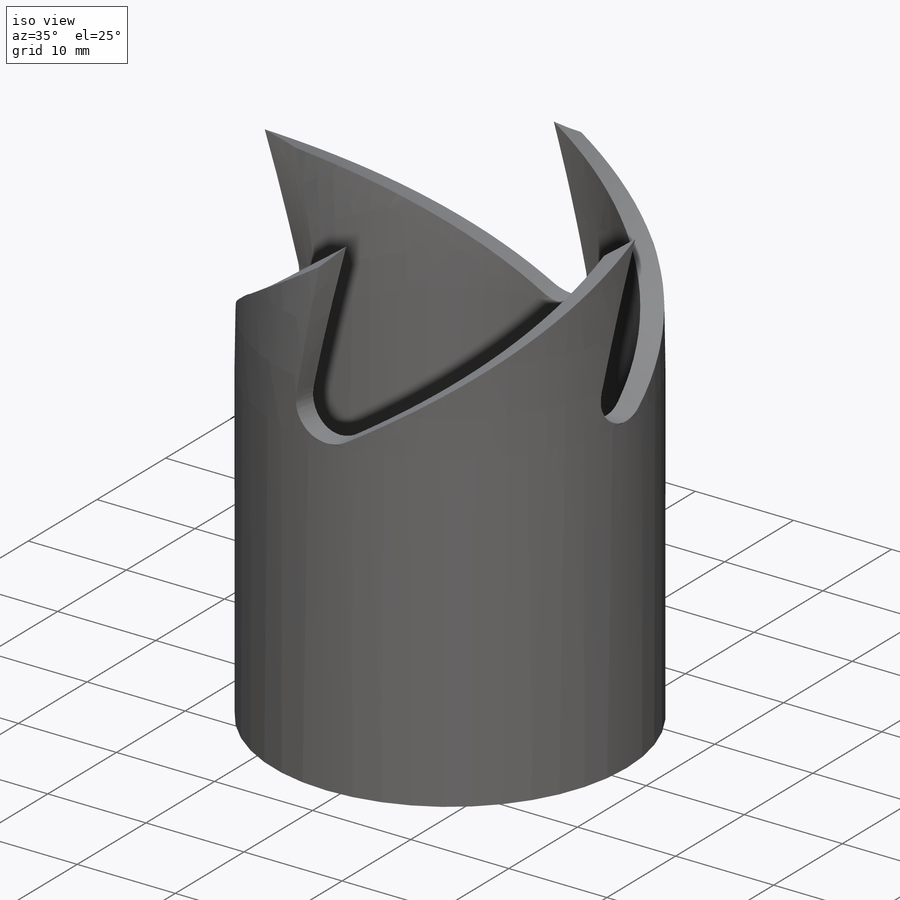
[diagram: iso view]
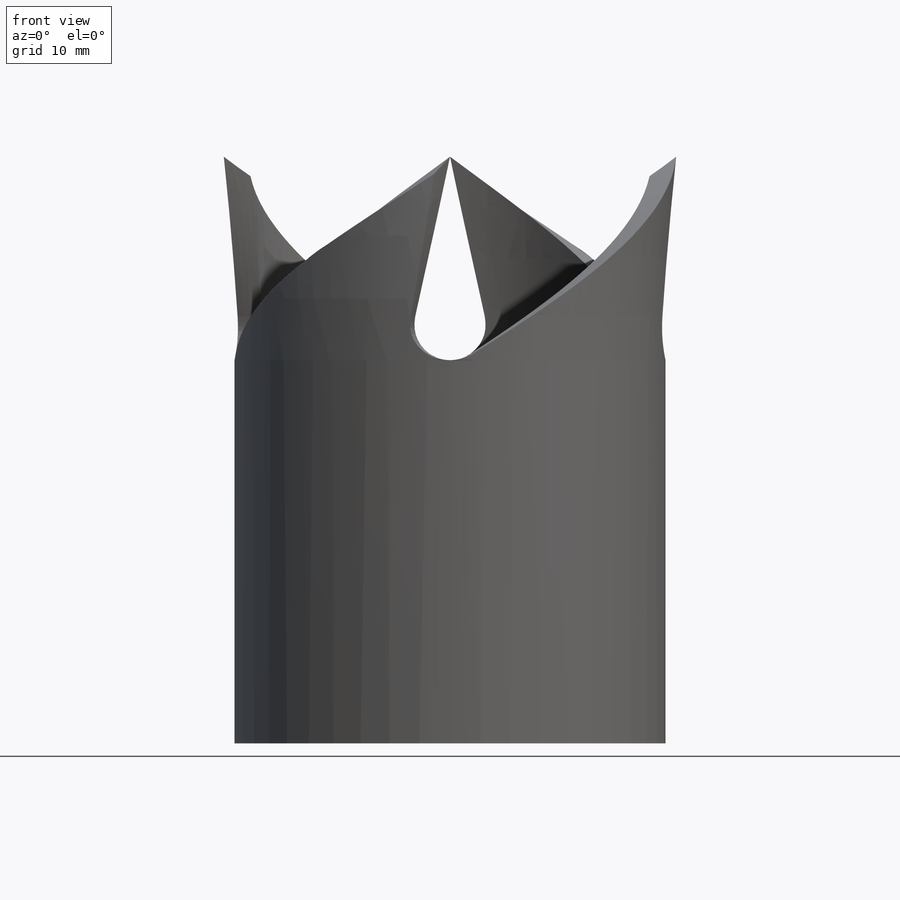
[diagram: front view]
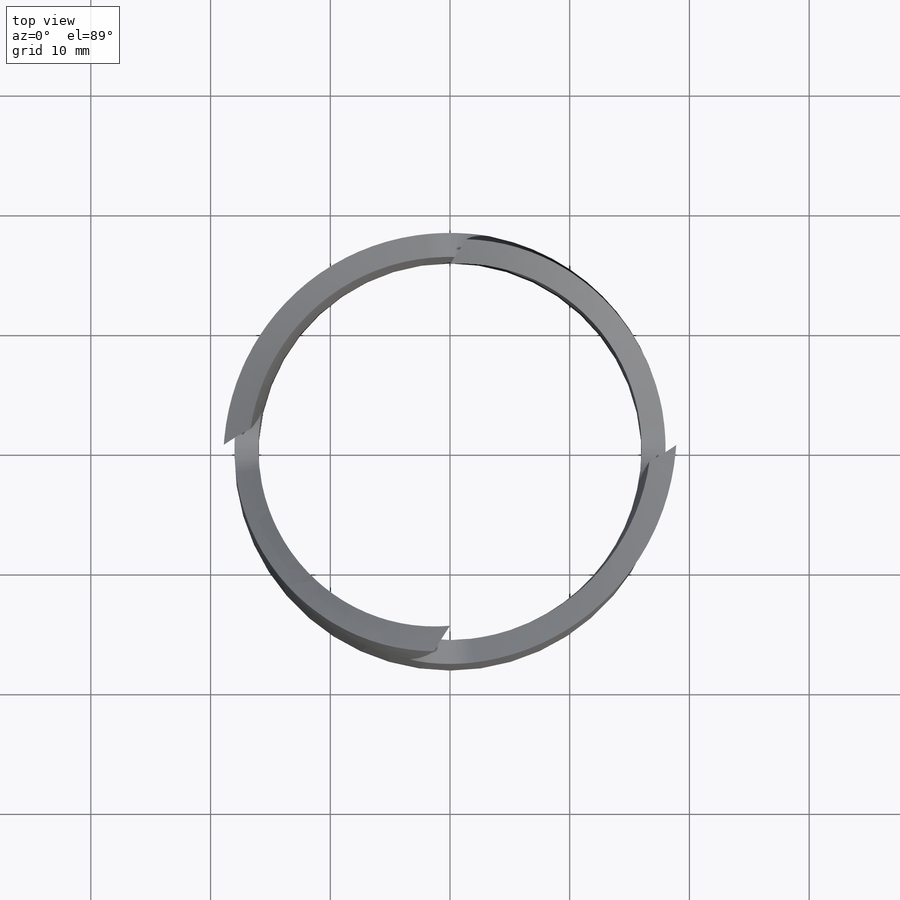
[diagram: top view]
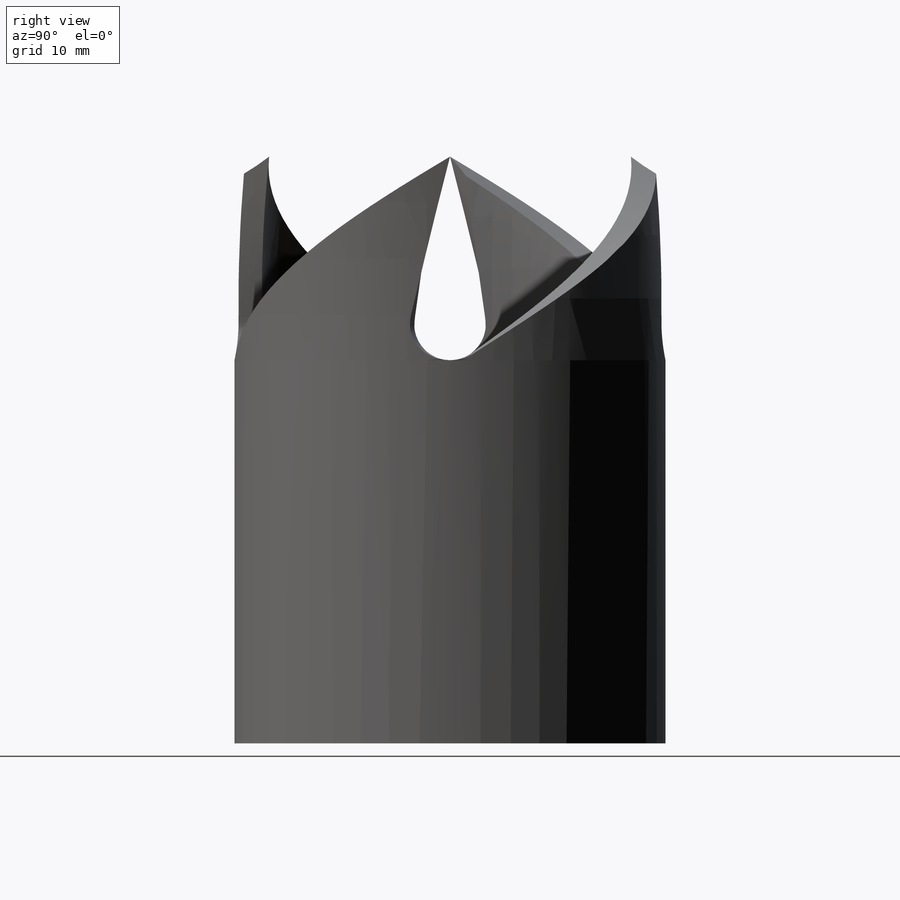
[diagram: right view]
SOLIDWORKS PART (.sldprt)
format: sldprt  version: not decoded by parser v0  size: 801,280 bytes
history: native  units: mm
features: sketch x16, plane x12, pattern_circular x2, boolean_combine x2, material x1, surface_op x1, extrude x1, cut_extrude x1 + 2 further entries (+8 scaffold rows collapsed)
feature tree (46):
  scaffold x8  (default folders/planes/origin — collapsed)
  material  "Material <nicht festgelegt>"
  plane  "Ebene vorne"
  plane  "Ebene oben"
  plane  "Ebene rechts"
  sketch  "Längen"  dims[D1=18.0mm D2=50.0mm]
  sketch  "Profil"  dims[c1.D1=36.0mm c1.D2=~61.499002mm c1.D3=32.0mm c2.D1=32.0mm c2.D3=36.0mm c2.Aussen=36.0mm c3.D3=32.0mm c3.Wand_Stärke=2.0mm c3.D4=~25.132741mm]
  plane  "Ebene1"
  sketch  "Z_Kontur"  dims[c1.D2=~3.155596mm c1.D3=2.0mm c1.D4=2.0mm c2.D3=2.0mm c2.D4=2.0mm c2.D5=2.0mm c3.D3=4.0mm c3.D2=2.0mm c4.D3=3.0mm c4.D1=25.0mm c5.D1=60.0deg c5.D2=~18.044955mm c6.D1=1.0mm c6.D2=3.0mm c6.D4=~0.108689mm c7.D2=~20.579115mm c8.D2=8.0deg c8.D4=3.0mm c9.D2=~20.582406mm c10.D2=8.0deg c10.D3=~20.784681mm c10.D1=1.0mm c11.D2=~19.17571mm c12.D2=8.0deg c12.D3=4.0mm c12.D4=~18.202123mm c13.D4=8.0deg c13.D3=4.0mm c13.D2=3.0mm c14.D4=14.0mm c14.D5=~13.674794mm c15.D5=~12.373625deg]
  surface_op  "Oberfläche-Linear austragen1"
  sketch  "Skizze1"  dims[D1=36.0mm D2=2.0mm]
  pattern_circular  "Kreismuster1"  Count=4 Angle=360deg
  extrude  "Aufsatz-Linear austragen1"  [1 undecoded]
  boolean_combine  "Kombinieren1"
  sketch  "Skizze2"
  cut_extrude  "Schnitt-Linear austragen1"  [1 undecoded]
  sketch  "Skizze3"
  sketch  "Skizze4"  dims[c1.D2=~162.496193mm c1.D1=1.0mm c2.D2=~2.012232mm]
  "Fläche verschieben2"
  sketch  "Skizze6"  dims[D1=1.0mm]
  "Fläche verschieben3"
  plane  "Ebene3"
  plane  "Ebene4"
  plane  "Ebene5"
  plane  "Ebene6"
  sketch  "Skizze7"  dims[c1.D1=~2.762816mm c2.D1=30.0deg c2.D2=4.0mm c2.D3=~1.407447mm c3.D1=2.0mm c3.D2=4.0mm c3.D3=5.0mm c4.D3=30.0deg]
  sketch  "Skizze8"  dims[D1=4.0mm D2=2.0mm]
  sketch  "Skizze9"  dims[c1.D1=2.0mm c1.D2=4.0mm c1.D3=5.0mm c2.D3=30.0deg]
  sketch  "Skizze10"  dims[D1=2.0mm D2=4.0mm]
  plane  "Ebene7"
  plane  "Ebene8"
  plane  "Ebene9"
  plane  "Ebene10"
  sketch  "Skizze11"  dims[c1.D1=4.0mm c1.D2=2.0mm c1.D3=~2.080165mm c2.D3=15.0deg]
  sketch  "Skizze12"  dims[c1.D1=5.0mm c1.D2=3.0mm c2.D1=4.0mm c2.D2=2.0mm]
  sketch  "Skizze13"  dims[c1.D1=4.0mm c1.D2=3.0mm c1.D3=2.0mm c1.D4=4.0mm c2.D2=~1.952344mm c3.D2=15.0deg c4.D2=5.0mm c5.D2=15.0deg c5.D1=4.0mm]
  sketch  "Skizze14"  dims[c1.D1=4.0mm c1.D2=3.0mm c1.D3=2.0mm c2.D2=1.0mm]
  pattern_circular  "Kreismuster2"  Count=2 Angle=360deg
  boolean_combine  "Kombinieren2"
decode coverage: 16 of 23 modeling features carry decoded parameters; 2 rows unclassified (native names shown)
note: ~ marks probable driven/reference dimensions
note: 2 parameter values undecoded
note: suppression state not decoded; provenance and decode notes live in map.json
